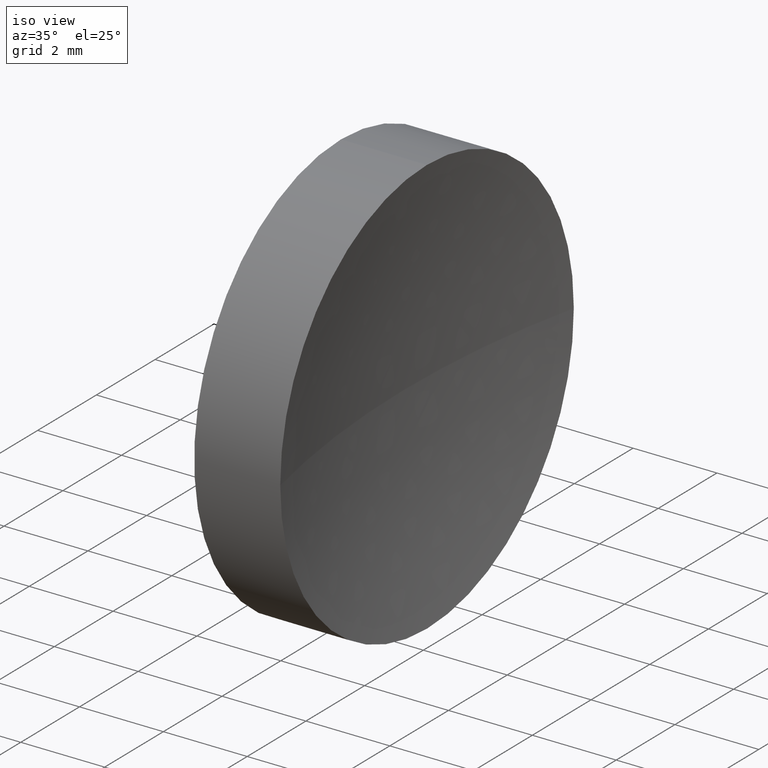
[diagram: clean part render]
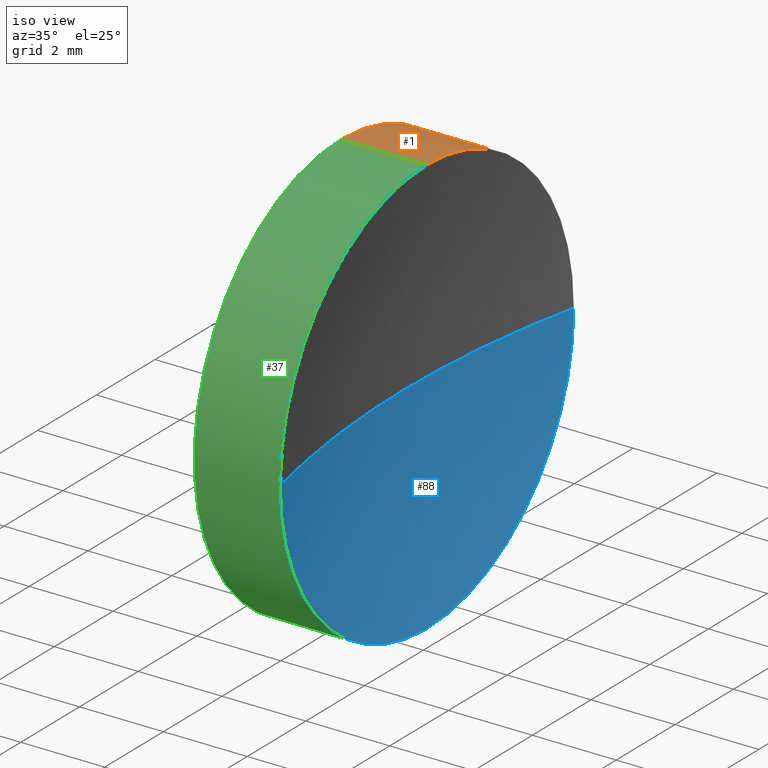
[diagram: same view with three faces highlighted in distinct colors, each labeled with its STEP entity id]
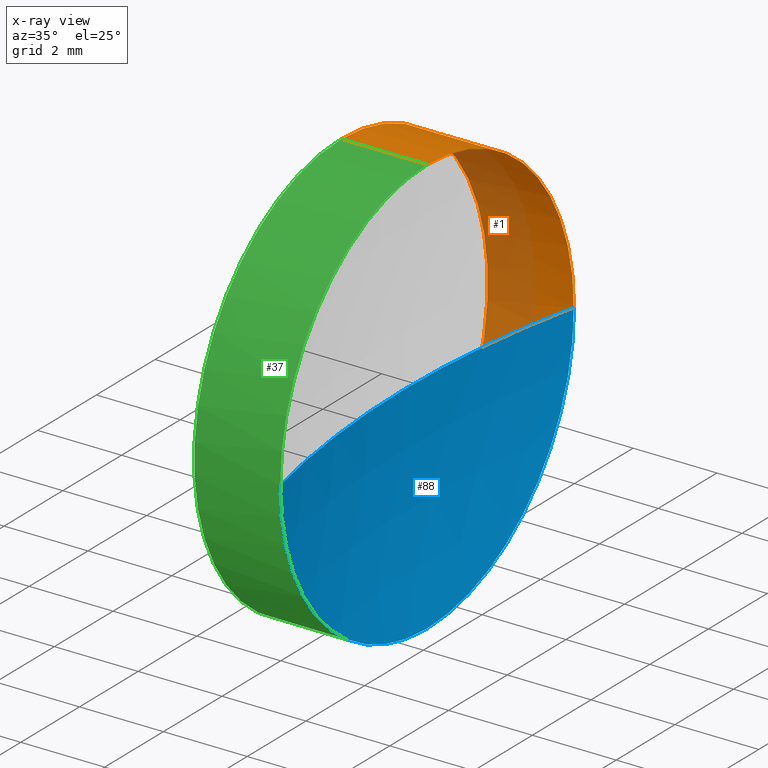
[diagram: x-ray of the same camera — body ghosted, the three highlighted faces saturated]
A machine part, iso view with three faces highlighted in distinct colors.
The next image is the same camera in x-ray (body ghosted, the three faces saturated) — at least one of them is partly hidden behind the body in this view.
Their STEP definitions:

[orange] entity #1 — the highlighted cylindrical surface (partial cylindrical patch) has radius 5 mm, axis along (-1, -0, -0).
#1 = ADVANCED_FACE ( 'NONE', ( #124 ), #78, .T. ) ;
#4 = CARTESIAN_POINT ( 'NONE',  ( 47.70171121220715100, 28.47759563463748100, 4.999999999999997300 ) ) ;
#8 = AXIS2_PLACEMENT_3D ( 'NONE', #81, #184, #158 ) ;
#9 = CARTESIAN_POINT ( 'NONE',  ( 49.75373410206150700, 28.47759563463748100, 0.0000000000000000000 ) ) ;
#14 = LINE ( 'NONE', #171, #65 ) ;
#16 = DIRECTION ( 'NONE',  ( -1.000000000000000000, -0.0000000000000000000, -0.0000000000000000000 ) ) ;
#18 = CARTESIAN_POINT ( 'NONE',  ( 44.78209190302423800, 28.47759563463748100, 4.999999999999997300 ) ) ;
#20 = DIRECTION ( 'NONE',  ( -1.000000000000000000, -0.0000000000000000000, -0.0000000000000000000 ) ) ;
#24 = EDGE_CURVE ( 'NONE', #129, #118, #138, .T. ) ;
#28 = CARTESIAN_POINT ( 'NONE',  ( 44.78209190302423800, 28.47759563463748100, 0.0000000000000000000 ) ) ;
#29 = DIRECTION ( 'NONE',  ( -1.000000000000000000, -0.0000000000000000000, -0.0000000000000000000 ) ) ;
#30 = VERTEX_POINT ( 'NONE', #59 ) ;
#31 = VECTOR ( 'NONE', #29, 1000.000000000000000 ) ;
#32 = VERTEX_POINT ( 'NONE', #49 ) ;
#42 = DIRECTION ( 'NONE',  ( 0.0000000000000000000, 0.0000000000000000000, 1.000000000000000000 ) ) ;
#43 = EDGE_LOOP ( 'NONE', ( #173, #45, #79, #139, #156 ) ) ;
#45 = ORIENTED_EDGE ( 'NONE', *, *, #56, .T. ) ;
#46 = CIRCLE ( 'NONE', #168, 4.999999999999997300 ) ;
#48 = DIRECTION ( 'NONE',  ( -1.000000000000000000, -0.0000000000000000000, -0.0000000000000000000 ) ) ;
#49 = CARTESIAN_POINT ( 'NONE',  ( 47.70171121220715100, 28.47759563463748100, -4.999999999999997300 ) ) ;
#54 = VERTEX_POINT ( 'NONE', #119 ) ;
#56 = EDGE_CURVE ( 'NONE', #54, #32, #14, .T. ) ;
#59 = CARTESIAN_POINT ( 'NONE',  ( 49.75373410206150700, 33.47759563463747400, 0.0000000000000000000 ) ) ;
#65 = VECTOR ( 'NONE', #20, 1000.000000000000000 ) ;
#66 = EDGE_CURVE ( 'NONE', #129, #30, #46, .T. ) ;
#74 = DIRECTION ( 'NONE',  ( -1.000000000000000000, -0.0000000000000000000, -0.0000000000000000000 ) ) ;
#76 = AXIS2_PLACEMENT_3D ( 'NONE', #28, #74, #169 ) ;
#78 = CYLINDRICAL_SURFACE ( 'NONE', #76, 4.999999999999997300 ) ;
#79 = ORIENTED_EDGE ( 'NONE', *, *, #109, .F. ) ;
#80 = CIRCLE ( 'NONE', #130, 4.999999999999997300 ) ;
#81 = CARTESIAN_POINT ( 'NONE',  ( 49.75373410206150700, 28.47759563463748100, 0.0000000000000000000 ) ) ;
#100 = CARTESIAN_POINT ( 'NONE',  ( 49.75373410206150700, 28.47759563463748100, 4.999999999999997300 ) ) ;
#105 = CARTESIAN_POINT ( 'NONE',  ( 47.70171121220715100, 28.47759563463748100, 0.0000000000000000000 ) ) ;
#109 = EDGE_CURVE ( 'NONE', #118, #32, #80, .T. ) ;
#118 = VERTEX_POINT ( 'NONE', #4 ) ;
#119 = CARTESIAN_POINT ( 'NONE',  ( 49.75373410206150700, 28.47759563463748100, -4.999999999999997300 ) ) ;
#124 = FACE_OUTER_BOUND ( 'NONE', #43, .T. ) ;
#129 = VERTEX_POINT ( 'NONE', #100 ) ;
#130 = AXIS2_PLACEMENT_3D ( 'NONE', #105, #16, #42 ) ;
#134 = EDGE_CURVE ( 'NONE', #30, #54, #146, .T. ) ;
#138 = LINE ( 'NONE', #18, #31 ) ;
#139 = ORIENTED_EDGE ( 'NONE', *, *, #24, .F. ) ;
#146 = CIRCLE ( 'NONE', #8, 4.999999999999997300 ) ;
#156 = ORIENTED_EDGE ( 'NONE', *, *, #66, .T. ) ;
#158 = DIRECTION ( 'NONE',  ( 0.0000000000000000000, 0.0000000000000000000, 1.000000000000000000 ) ) ;
#165 = DIRECTION ( 'NONE',  ( 0.0000000000000000000, 0.0000000000000000000, 1.000000000000000000 ) ) ;
#168 = AXIS2_PLACEMENT_3D ( 'NONE', #9, #48, #165 ) ;
#169 = DIRECTION ( 'NONE',  ( 0.0000000000000000000, 0.0000000000000000000, 1.000000000000000000 ) ) ;
#171 = CARTESIAN_POINT ( 'NONE',  ( 44.78209190302423800, 28.47759563463748100, -4.999999999999997300 ) ) ;
#173 = ORIENTED_EDGE ( 'NONE', *, *, #134, .T. ) ;
#184 = DIRECTION ( 'NONE',  ( -1.000000000000000000, -0.0000000000000000000, -0.0000000000000000000 ) ) ;

[blue] entity #88 — the highlighted spherical surface has radius 22.92 mm.
#5 = VERTEX_POINT ( 'NONE', #135 ) ;
#7 = EDGE_LOOP ( 'NONE', ( #111, #86, #68, #11 ) ) ;
#8 = AXIS2_PLACEMENT_3D ( 'NONE', #81, #184, #158 ) ;
#11 = ORIENTED_EDGE ( 'NONE', *, *, #126, .T. ) ;
#21 = SPHERICAL_SURFACE ( 'NONE', #90, 22.91999999999999500 ) ;
#23 = DIRECTION ( 'NONE',  ( 0.0000000000000000000, 0.0000000000000000000, 1.000000000000000000 ) ) ;
#25 = EDGE_CURVE ( 'NONE', #54, #5, #120, .T. ) ;
#30 = VERTEX_POINT ( 'NONE', #59 ) ;
#44 = DIRECTION ( 'NONE',  ( 0.0000000000000000000, 1.000000000000000000, 0.0000000000000000000 ) ) ;
#53 = CIRCLE ( 'NONE', #183, 22.91999999999999800 ) ;
#54 = VERTEX_POINT ( 'NONE', #119 ) ;
#57 = CARTESIAN_POINT ( 'NONE',  ( 49.20171121220716500, 28.47759563463747400, 0.0000000000000000000 ) ) ;
#59 = CARTESIAN_POINT ( 'NONE',  ( 49.75373410206150700, 33.47759563463747400, 0.0000000000000000000 ) ) ;
#62 = FACE_OUTER_BOUND ( 'NONE', #7, .T. ) ;
#68 = ORIENTED_EDGE ( 'NONE', *, *, #134, .F. ) ;
#70 = CARTESIAN_POINT ( 'NONE',  ( 72.12171121220716000, 28.47759563463747400, 0.0000000000000000000 ) ) ;
#73 = VERTEX_POINT ( 'NONE', #57 ) ;
#81 = CARTESIAN_POINT ( 'NONE',  ( 49.75373410206150700, 28.47759563463748100, 0.0000000000000000000 ) ) ;
#86 = ORIENTED_EDGE ( 'NONE', *, *, #25, .F. ) ;
#88 = ADVANCED_FACE ( 'NONE', ( #62 ), #21, .F. ) ;
#89 = DIRECTION ( 'NONE',  ( 0.0000000000000000000, 1.224646799147353200E-016, -1.000000000000000000 ) ) ;
#90 = AXIS2_PLACEMENT_3D ( 'NONE', #116, #180, #44 ) ;
#93 = CARTESIAN_POINT ( 'NONE',  ( 72.12171121220716000, 28.47759563463747400, 0.0000000000000000000 ) ) ;
#98 = CARTESIAN_POINT ( 'NONE',  ( 49.75373410206150700, 28.47759563463748100, 0.0000000000000000000 ) ) ;
#102 = AXIS2_PLACEMENT_3D ( 'NONE', #93, #23, #112 ) ;
#111 = ORIENTED_EDGE ( 'NONE', *, *, #117, .F. ) ;
#112 = DIRECTION ( 'NONE',  ( 1.000000000000000000, 0.0000000000000000000, 0.0000000000000000000 ) ) ;
#116 = CARTESIAN_POINT ( 'NONE',  ( 72.12171121220716000, 28.47759563463747400, 0.0000000000000000000 ) ) ;
#117 = EDGE_CURVE ( 'NONE', #5, #73, #53, .T. ) ;
#119 = CARTESIAN_POINT ( 'NONE',  ( 49.75373410206150700, 28.47759563463748100, -4.999999999999997300 ) ) ;
#120 = CIRCLE ( 'NONE', #150, 4.999999999999997300 ) ;
#123 = DIRECTION ( 'NONE',  ( -1.000000000000000000, -0.0000000000000000000, -0.0000000000000000000 ) ) ;
#125 = CIRCLE ( 'NONE', #102, 22.91999999999999500 ) ;
#126 = EDGE_CURVE ( 'NONE', #30, #73, #125, .T. ) ;
#134 = EDGE_CURVE ( 'NONE', #30, #54, #146, .T. ) ;
#135 = CARTESIAN_POINT ( 'NONE',  ( 49.75373410206150700, 23.47759563463748100, -6.123233995736758400E-016 ) ) ;
#146 = CIRCLE ( 'NONE', #8, 4.999999999999997300 ) ;
#149 = DIRECTION ( 'NONE',  ( 0.0000000000000000000, 1.000000000000000000, 1.224646799147353000E-016 ) ) ;
#150 = AXIS2_PLACEMENT_3D ( 'NONE', #98, #123, #154 ) ;
#154 = DIRECTION ( 'NONE',  ( 0.0000000000000000000, 0.0000000000000000000, 1.000000000000000000 ) ) ;
#158 = DIRECTION ( 'NONE',  ( 0.0000000000000000000, 0.0000000000000000000, 1.000000000000000000 ) ) ;
#180 = DIRECTION ( 'NONE',  ( 0.0000000000000000000, 0.0000000000000000000, -1.000000000000000000 ) ) ;
#183 = AXIS2_PLACEMENT_3D ( 'NONE', #70, #89, #149 ) ;
#184 = DIRECTION ( 'NONE',  ( -1.000000000000000000, -0.0000000000000000000, -0.0000000000000000000 ) ) ;

[green] entity #37 — the highlighted cylindrical surface (partial cylindrical patch) has radius 5 mm, axis along (-1, -0, -0).
#3 = ORIENTED_EDGE ( 'NONE', *, *, #24, .T. ) ;
#4 = CARTESIAN_POINT ( 'NONE',  ( 47.70171121220715100, 28.47759563463748100, 4.999999999999997300 ) ) ;
#5 = VERTEX_POINT ( 'NONE', #135 ) ;
#14 = LINE ( 'NONE', #171, #65 ) ;
#17 = ORIENTED_EDGE ( 'NONE', *, *, #25, .T. ) ;
#18 = CARTESIAN_POINT ( 'NONE',  ( 44.78209190302423800, 28.47759563463748100, 4.999999999999997300 ) ) ;
#20 = DIRECTION ( 'NONE',  ( -1.000000000000000000, -0.0000000000000000000, -0.0000000000000000000 ) ) ;
#24 = EDGE_CURVE ( 'NONE', #129, #118, #138, .T. ) ;
#25 = EDGE_CURVE ( 'NONE', #54, #5, #120, .T. ) ;
#27 = FACE_OUTER_BOUND ( 'NONE', #131, .T. ) ;
#29 = DIRECTION ( 'NONE',  ( -1.000000000000000000, -0.0000000000000000000, -0.0000000000000000000 ) ) ;
#31 = VECTOR ( 'NONE', #29, 1000.000000000000000 ) ;
#32 = VERTEX_POINT ( 'NONE', #49 ) ;
#37 = ADVANCED_FACE ( 'NONE', ( #27 ), #186, .T. ) ;
#49 = CARTESIAN_POINT ( 'NONE',  ( 47.70171121220715100, 28.47759563463748100, -4.999999999999997300 ) ) ;
#52 = ORIENTED_EDGE ( 'NONE', *, *, #77, .F. ) ;
#54 = VERTEX_POINT ( 'NONE', #119 ) ;
#55 = DIRECTION ( 'NONE',  ( 0.0000000000000000000, 0.0000000000000000000, 1.000000000000000000 ) ) ;
#56 = EDGE_CURVE ( 'NONE', #54, #32, #14, .T. ) ;
#61 = CARTESIAN_POINT ( 'NONE',  ( 44.78209190302423800, 28.47759563463748100, 0.0000000000000000000 ) ) ;
#65 = VECTOR ( 'NONE', #20, 1000.000000000000000 ) ;
#67 = ORIENTED_EDGE ( 'NONE', *, *, #104, .T. ) ;
#69 = AXIS2_PLACEMENT_3D ( 'NONE', #166, #145, #115 ) ;
#77 = EDGE_CURVE ( 'NONE', #32, #118, #182, .T. ) ;
#92 = ORIENTED_EDGE ( 'NONE', *, *, #56, .F. ) ;
#94 = AXIS2_PLACEMENT_3D ( 'NONE', #61, #137, #107 ) ;
#98 = CARTESIAN_POINT ( 'NONE',  ( 49.75373410206150700, 28.47759563463748100, 0.0000000000000000000 ) ) ;
#100 = CARTESIAN_POINT ( 'NONE',  ( 49.75373410206150700, 28.47759563463748100, 4.999999999999997300 ) ) ;
#104 = EDGE_CURVE ( 'NONE', #5, #129, #179, .T. ) ;
#107 = DIRECTION ( 'NONE',  ( 0.0000000000000000000, 0.0000000000000000000, 1.000000000000000000 ) ) ;
#115 = DIRECTION ( 'NONE',  ( 0.0000000000000000000, 0.0000000000000000000, 1.000000000000000000 ) ) ;
#118 = VERTEX_POINT ( 'NONE', #4 ) ;
#119 = CARTESIAN_POINT ( 'NONE',  ( 49.75373410206150700, 28.47759563463748100, -4.999999999999997300 ) ) ;
#120 = CIRCLE ( 'NONE', #150, 4.999999999999997300 ) ;
#123 = DIRECTION ( 'NONE',  ( -1.000000000000000000, -0.0000000000000000000, -0.0000000000000000000 ) ) ;
#129 = VERTEX_POINT ( 'NONE', #100 ) ;
#131 = EDGE_LOOP ( 'NONE', ( #92, #17, #67, #3, #52 ) ) ;
#133 = DIRECTION ( 'NONE',  ( -1.000000000000000000, -0.0000000000000000000, -0.0000000000000000000 ) ) ;
#135 = CARTESIAN_POINT ( 'NONE',  ( 49.75373410206150700, 23.47759563463748100, -6.123233995736758400E-016 ) ) ;
#137 = DIRECTION ( 'NONE',  ( -1.000000000000000000, -0.0000000000000000000, -0.0000000000000000000 ) ) ;
#138 = LINE ( 'NONE', #18, #31 ) ;
#145 = DIRECTION ( 'NONE',  ( -1.000000000000000000, -0.0000000000000000000, -0.0000000000000000000 ) ) ;
#147 = CARTESIAN_POINT ( 'NONE',  ( 49.75373410206150700, 28.47759563463748100, 0.0000000000000000000 ) ) ;
#150 = AXIS2_PLACEMENT_3D ( 'NONE', #98, #123, #154 ) ;
#154 = DIRECTION ( 'NONE',  ( 0.0000000000000000000, 0.0000000000000000000, 1.000000000000000000 ) ) ;
#166 = CARTESIAN_POINT ( 'NONE',  ( 47.70171121220715100, 28.47759563463748100, 0.0000000000000000000 ) ) ;
#171 = CARTESIAN_POINT ( 'NONE',  ( 44.78209190302423800, 28.47759563463748100, -4.999999999999997300 ) ) ;
#176 = AXIS2_PLACEMENT_3D ( 'NONE', #147, #133, #55 ) ;
#179 = CIRCLE ( 'NONE', #176, 4.999999999999997300 ) ;
#182 = CIRCLE ( 'NONE', #69, 4.999999999999997300 ) ;
#186 = CYLINDRICAL_SURFACE ( 'NONE', #94, 4.999999999999997300 ) ;